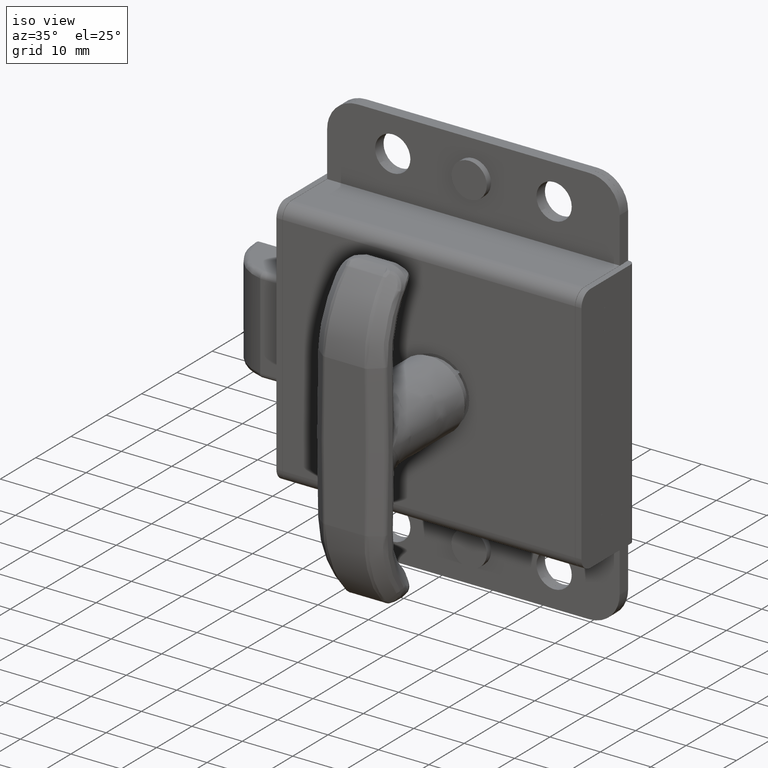
[diagram: clean part render]
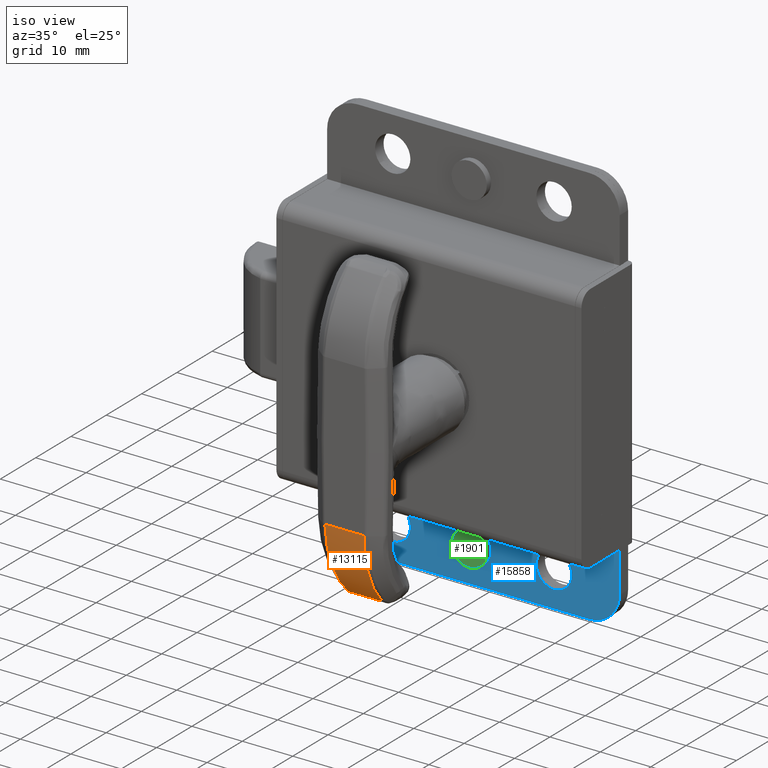
[diagram: same view with three faces highlighted in distinct colors, each labeled with its STEP entity id]
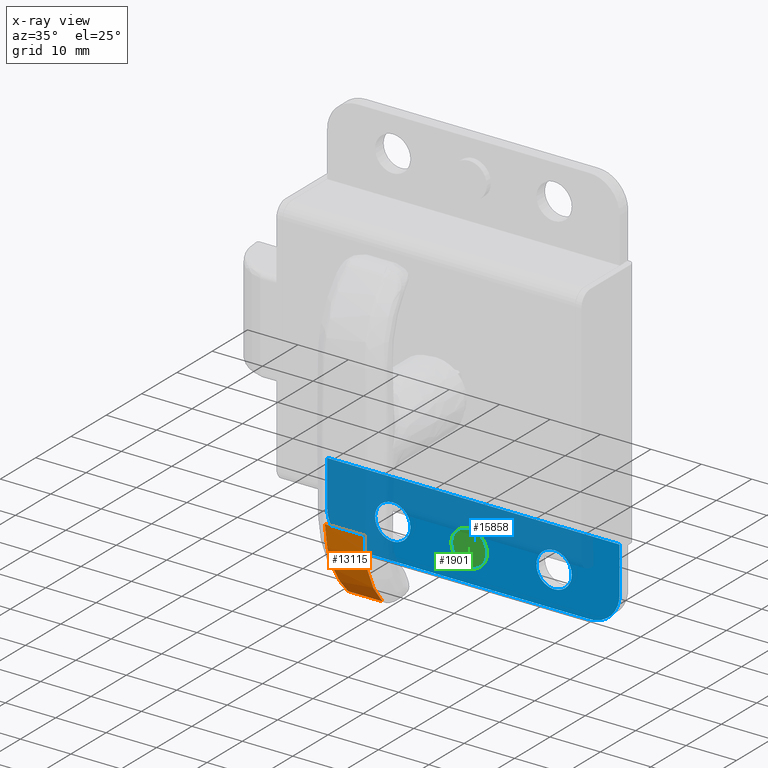
[diagram: x-ray of the same camera — body ghosted, the three highlighted faces saturated]
A machine part, iso view with three faces highlighted in distinct colors.
The next image is the same camera in x-ray (body ghosted, the three faces saturated) — at least one of them is partly hidden behind the body in this view.
Their STEP definitions:

[orange] entity #13115 — the highlighted face is a freeform B-spline surface patch.
#7572=CARTESIAN_POINT('',(34.866581857402700,-3.390833851640485,-29.117647058823550));
#7573=VERTEX_POINT('',#7572);
#7731=CARTESIAN_POINT('',(34.866581857402700,3.390846303012135,-29.117647058823550));
#7732=VERTEX_POINT('',#7731);
#8295=CARTESIAN_POINT('',(34.866581857402700,-3.390833851640485,-29.117647058823550));
#8296=CARTESIAN_POINT('',(34.866581857402700,3.390846303012135,-29.117647058823550));
#8297=QUASI_UNIFORM_CURVE('',1,(#8295,#8296),.UNSPECIFIED.,.F.,.U.);
#8298=EDGE_CURVE('',#7573,#7732,#8297,.T.);
#11952=CARTESIAN_POINT('',(40.700000000000003,-3.922784362413668,-15.0));
#11953=VERTEX_POINT('',#11952);
#11954=CARTESIAN_POINT('',(40.700000000000003,-3.922784362413668,-15.0));
#11955=CARTESIAN_POINT('',(40.699984684532879,-3.894117184423682,-16.020590056451422));
#11956=CARTESIAN_POINT('',(40.540175108375102,-3.831930946873028,-18.102464384662980));
#11957=CARTESIAN_POINT('',(39.879318813633560,-3.738250470200961,-20.891524496435899));
#11958=CARTESIAN_POINT('',(38.754569020394619,-3.630783454281930,-23.788048111032658));
#11959=CARTESIAN_POINT('',(37.176562423955048,-3.517359140310995,-26.522090437432428));
#11960=CARTESIAN_POINT('',(35.644487148158120,-3.430813154814004,-28.337173961863389));
#11961=CARTESIAN_POINT('',(34.866581857402700,-3.390833851640485,-29.117647058823550));
#11962=B_SPLINE_CURVE_WITH_KNOTS('',3,(#11954,#11955,#11956,#11957,#11958,#11959,#11960,#11961),.UNSPECIFIED.,.F.,.U.,(4,1,1,1,1,4),(0.000000013225765,3.062975348638464,6.248476765826531,8.576330709866040,12.374434148582891,15.682447340679831),.UNSPECIFIED.);
#11963=EDGE_CURVE('',#11953,#7573,#11962,.T.);
#12434=CARTESIAN_POINT('',(40.700000000000003,3.923046209698191,-15.0));
#12435=VERTEX_POINT('',#12434);
#12436=CARTESIAN_POINT('',(34.866581857402700,3.390846303012135,-29.117647058823550));
#12437=CARTESIAN_POINT('',(35.759828202062003,3.436799092020370,-28.221615474150639));
#12438=CARTESIAN_POINT('',(36.958262847100990,3.505580531705960,-26.765576290862519));
#12439=CARTESIAN_POINT('',(38.426871086419112,3.607334068280325,-24.359253588092720));
#12440=CARTESIAN_POINT('',(39.522402391581693,3.699619263927739,-21.980844066863721));
#12441=CARTESIAN_POINT('',(40.455604896134517,3.811905434337211,-18.755546524060449));
#12442=CARTESIAN_POINT('',(40.700088099535101,3.885220623561299,-16.347189874097911));
#12443=CARTESIAN_POINT('',(40.700000000000003,3.923046209698191,-15.0));
#12444=B_SPLINE_CURVE_WITH_KNOTS('',3,(#12436,#12437,#12438,#12439,#12440,#12441,#12442,#12443),.UNSPECIFIED.,.F.,.U.,(4,1,1,1,1,4),(0.000000013239648,3.798098070723198,5.635896250115776,8.453815982737567,11.639333666689669,15.682471205172099),.UNSPECIFIED.);
#12445=EDGE_CURVE('',#7732,#12435,#12444,.T.);
#12951=CARTESIAN_POINT('',(40.700000000000003,3.923046209698191,-15.0));
#12952=CARTESIAN_POINT('',(40.700000000000003,-3.922784362413668,-15.0));
#12953=QUASI_UNIFORM_CURVE('',1,(#12951,#12952),.UNSPECIFIED.,.F.,.U.);
#12954=EDGE_CURVE('',#12435,#11953,#12953,.T.);
#13095=CARTESIAN_POINT('',(40.699238461283407,4.119191974000987,-14.825469290032540));
#13096=CARTESIAN_POINT('',(40.699238461283407,-4.123833770824033,-14.825469290032540));
#13097=CARTESIAN_POINT('',(40.776191132410204,4.119191974000987,-23.643371998297592));
#13098=CARTESIAN_POINT('',(40.776191132410204,-4.123833770824033,-23.643371998297592));
#13099=CARTESIAN_POINT('',(34.317866777769282,4.119191974000987,-29.647651839900053));
#13100=CARTESIAN_POINT('',(34.317866777769282,-4.123833770824033,-29.647651839900053));
#13108=(BOUNDED_SURFACE()B_SPLINE_SURFACE(1,2,((#13095,#13097,#13099),(#13096,#13098,#13100)),.UNSPECIFIED.,.F.,.F.,.U.)B_SPLINE_SURFACE_WITH_KNOTS((2,2),(3,3),(0.0,8.243025744825021),(0.0,16.853723274235531),.UNSPECIFIED.)GEOMETRIC_REPRESENTATION_ITEM()RATIONAL_B_SPLINE_SURFACE(((1.0,0.914311860418089,0.998480782473395),(1.0,0.914311860418089,0.998480782473395)))REPRESENTATION_ITEM('')SURFACE());
#13109=ORIENTED_EDGE('',*,*,#11963,.T.);
#13110=ORIENTED_EDGE('',*,*,#8298,.T.);
#13111=ORIENTED_EDGE('',*,*,#12445,.T.);
#13112=ORIENTED_EDGE('',*,*,#12954,.T.);
#13113=EDGE_LOOP('',(#13109,#13110,#13111,#13112));
#13114=FACE_OUTER_BOUND('',#13113,.T.);
#13115=ADVANCED_FACE('',(#13114),#13108,.T.);

[blue] entity #15858 — the highlighted face is a freeform B-spline surface patch.
#13448=CARTESIAN_POINT('',(-3.416920234175149,-2.399999999999960,-34.756534873774939));
#13449=VERTEX_POINT('',#13448);
#13455=CARTESIAN_POINT('',(-1.499998785926152,-2.399999999999960,-35.600000000000001));
#13456=VERTEX_POINT('',#13455);
#13457=CARTESIAN_POINT('',(-3.416920234175149,-2.399999999999960,-34.756534873774939));
#13458=CARTESIAN_POINT('',(-3.219855669757540,-2.399999999999959,-34.971905792341893));
#13459=CARTESIAN_POINT('',(-2.842055765705816,-2.399999999999960,-35.265038733601052));
#13460=CARTESIAN_POINT('',(-2.173536192322477,-2.399999999999962,-35.538734691216348));
#13461=CARTESIAN_POINT('',(-1.746993959185649,-2.399999999999957,-35.600095130316213));
#13462=CARTESIAN_POINT('',(-1.499998785926152,-2.399999999999960,-35.600000000000001));
#13463=B_SPLINE_CURVE_WITH_KNOTS('',3,(#13457,#13458,#13459,#13460,#13461,#13462),.UNSPECIFIED.,.F.,.U.,(4,1,1,4),(0.000000034474533,0.875678358674883,1.414538481553656,2.155496908159915),.UNSPECIFIED.);
#13464=EDGE_CURVE('',#13449,#13456,#13463,.T.);
#13466=CARTESIAN_POINT('',(1.100001214073072,-2.399999999999960,-32.999997991167277));
#13467=VERTEX_POINT('',#13466);
#13468=CARTESIAN_POINT('',(-1.499998785926152,-2.399999999999960,-35.600000000000001));
#13469=CARTESIAN_POINT('',(-1.287293132867444,-2.399999999999958,-35.600028725438477));
#13470=CARTESIAN_POINT('',(-0.798024374786281,-2.399999999999966,-35.539723560499532));
#13471=CARTESIAN_POINT('',(-0.184229588232030,-2.399999999999957,-35.276662493307157));
#13472=CARTESIAN_POINT('',(0.304357308947055,-2.399999999999966,-34.895158869968661));
#13473=CARTESIAN_POINT('',(0.639431305791449,-2.399999999999958,-34.506757094296248));
#13474=CARTESIAN_POINT('',(0.881726096317039,-2.399999999999960,-34.079012914186421));
#13475=CARTESIAN_POINT('',(1.055370652094941,-2.399999999999973,-33.574297585938723));
#13476=CARTESIAN_POINT('',(1.100052276730717,-2.399999999999929,-33.212714013943149));
#13477=CARTESIAN_POINT('',(1.100001214073072,-2.399999999999960,-32.999997991167277));
#13478=B_SPLINE_CURVE_WITH_KNOTS('',3,(#13468,#13469,#13470,#13471,#13472,#13473,#13474,#13475,#13476,#13477),.UNSPECIFIED.,.F.,.U.,(4,1,1,1,1,1,1,4),(0.000000049362655,0.638148559401645,1.467754755126798,1.978275085900015,2.488787162450159,2.999315219038092,3.446025558408784,4.084174067509134),.UNSPECIFIED.);
#13479=EDGE_CURVE('',#13456,#13467,#13478,.T.);
#13481=CARTESIAN_POINT('',(-1.499998785926152,-2.399999999999960,-30.399999999999999));
#13482=VERTEX_POINT('',#13481);
#13483=CARTESIAN_POINT('',(1.100001214073072,-2.399999999999960,-32.999997991167277));
#13484=CARTESIAN_POINT('',(1.100142343178673,-2.399999999999963,-32.723457505864353));
#13485=CARTESIAN_POINT('',(1.014360302731858,-2.399999999999958,-32.191763934770833));
#13486=CARTESIAN_POINT('',(0.695361952268229,-2.399999999999963,-31.557929230442891));
#13487=CARTESIAN_POINT('',(0.304342029933809,-2.399999999999959,-31.104847042812700));
#13488=CARTESIAN_POINT('',(-0.184227299882296,-2.399999999999964,-30.723334019064570));
#13489=CARTESIAN_POINT('',(-0.798025880729342,-2.399999999999952,-30.460276165366331));
#13490=CARTESIAN_POINT('',(-1.287292783137545,-2.399999999999973,-30.399970893022410));
#13491=CARTESIAN_POINT('',(-1.499998785926152,-2.399999999999960,-30.399999999999999));
#13492=B_SPLINE_CURVE_WITH_KNOTS('',3,(#13483,#13484,#13485,#13486,#13487,#13488,#13489,#13490,#13491),.UNSPECIFIED.,.F.,.U.,(4,1,1,1,1,1,4),(0.000000052114298,0.829596368977025,1.595386072455264,2.105897864372087,2.616417911213779,3.446023646687444,4.084171803029951),.UNSPECIFIED.);
#13493=EDGE_CURVE('',#13467,#13482,#13492,.T.);
#13495=CARTESIAN_POINT('',(-3.363291000172590,-2.399999999999960,-31.186677217423661));
#13496=VERTEX_POINT('',#13495);
#13497=CARTESIAN_POINT('',(-1.499998785926152,-2.399999999999960,-30.399999999999999));
#13498=CARTESIAN_POINT('',(-1.759686707306527,-2.399999999999958,-30.399887577409270));
#13499=CARTESIAN_POINT('',(-2.170751542890674,-2.399999999999957,-30.462126072113531));
#13500=CARTESIAN_POINT('',(-2.814474150497446,-2.399999999999965,-30.724487106093822));
#13501=CARTESIAN_POINT('',(-3.167191042096416,-2.399999999999959,-30.984941690904641));
#13502=CARTESIAN_POINT('',(-3.363291000172590,-2.399999999999960,-31.186677217423661));
#13503=B_SPLINE_CURVE_WITH_KNOTS('',3,(#13497,#13498,#13499,#13500,#13501,#13502),.UNSPECIFIED.,.F.,.U.,(4,1,1,4),(0.000000028682990,0.779026053297691,1.233439493003217,2.077383332351485),.UNSPECIFIED.);
#13504=EDGE_CURVE('',#13482,#13496,#13503,.T.);
#13540=CARTESIAN_POINT('',(-4.099998785925376,-2.399999999999960,-33.000002008832702));
#13541=VERTEX_POINT('',#13540);
#13542=CARTESIAN_POINT('',(-3.363291000172590,-2.399999999999960,-31.186677217423661));
#13543=CARTESIAN_POINT('',(-3.523715797425609,-2.399999999999961,-31.351412107302998));
#13544=CARTESIAN_POINT('',(-3.762599835669079,-2.399999999999958,-31.673059134502019));
#13545=CARTESIAN_POINT('',(-4.030536263967387,-2.399999999999968,-32.289371746393023));
#13546=CARTESIAN_POINT('',(-4.100128699704898,-2.399999999999955,-32.728244023216298));
#13547=CARTESIAN_POINT('',(-4.099998785925376,-2.399999999999960,-33.000002008832702));
#13548=B_SPLINE_CURVE_WITH_KNOTS('',3,(#13542,#13543,#13544,#13545,#13546,#13547),.UNSPECIFIED.,.F.,.U.,(4,1,1,4),(0.000000014282088,0.689820832682457,1.191507894314409,2.006750850001553),.UNSPECIFIED.);
#13549=EDGE_CURVE('',#13496,#13541,#13548,.T.);
#13551=CARTESIAN_POINT('',(-4.099998785925376,-2.399999999999960,-33.000002008832702));
#13552=CARTESIAN_POINT('',(-4.100066309648689,-2.399999999999966,-33.220997079659348));
#13553=CARTESIAN_POINT('',(-4.056168627943325,-2.399999999999952,-33.562471689187603));
#13554=CARTESIAN_POINT('',(-3.850743084931842,-2.399999999999974,-34.173296150507483));
#13555=CARTESIAN_POINT('',(-3.620698054133786,-2.399999999999965,-34.534485363632363));
#13556=CARTESIAN_POINT('',(-3.416920234175149,-2.399999999999960,-34.756534873774939));
#13557=B_SPLINE_CURVE_WITH_KNOTS('',3,(#13551,#13552,#13553,#13554,#13555,#13556),.UNSPECIFIED.,.F.,.U.,(4,1,1,4),(0.000000021433308,0.662972812004960,1.024581104848874,1.928630163305347),.UNSPECIFIED.);
#13558=EDGE_CURVE('',#13541,#13449,#13557,.T.);
#14496=CARTESIAN_POINT('',(11.919530261611460,-2.399999999999960,-35.364566071365459));
#14497=VERTEX_POINT('',#14496);
#14503=CARTESIAN_POINT('',(14.500001214073921,-2.399999999999960,-36.500000000000007));
#14504=VERTEX_POINT('',#14503);
#14505=CARTESIAN_POINT('',(11.919530261611460,-2.399999999999960,-35.364566071365459));
#14506=CARTESIAN_POINT('',(12.164441716337830,-2.399999999999957,-35.632120268170468));
#14507=CARTESIAN_POINT('',(12.666740818759569,-2.399999999999970,-36.032596594050887));
#14508=CARTESIAN_POINT('',(13.563074690331019,-2.399999999999947,-36.413207711038957));
#14509=CARTESIAN_POINT('',(14.167514454261010,-2.399999999999970,-36.500121004566928));
#14510=CARTESIAN_POINT('',(14.500001214073921,-2.399999999999960,-36.500000000000007));
#14511=B_SPLINE_CURVE_WITH_KNOTS('',3,(#14505,#14506,#14507,#14508,#14509,#14510),.UNSPECIFIED.,.F.,.U.,(4,1,1,4),(0.000000032164861,1.088111893590678,1.904189423262297,2.901630277649041),.UNSPECIFIED.);
#14512=EDGE_CURVE('',#14497,#14504,#14511,.T.);
#14514=CARTESIAN_POINT('',(18.000001214073489,-2.399999999999960,-32.999998254870420));
#14515=VERTEX_POINT('',#14514);
#14516=CARTESIAN_POINT('',(14.500001214073921,-2.399999999999960,-36.500000000000007));
#14517=CARTESIAN_POINT('',(14.800669890643769,-2.399999999999962,-36.500091236438351));
#14518=CARTESIAN_POINT('',(15.287401427551311,-2.399999999999956,-36.436866260513412));
#14519=CARTESIAN_POINT('',(15.937928778138531,-2.399999999999964,-36.208574933133100));
#14520=CARTESIAN_POINT('',(16.542258463386521,-2.399999999999959,-35.876039379091047));
#14521=CARTESIAN_POINT('',(17.096788287302189,-2.399999999999978,-35.391742911500991));
#14522=CARTESIAN_POINT('',(17.492820564785280,-2.399999999999952,-34.843696177477099));
#14523=CARTESIAN_POINT('',(17.757242529438070,-2.399999999999961,-34.318376186343642));
#14524=CARTESIAN_POINT('',(17.947572698986569,-2.399999999999960,-33.730154089096807));
#14525=CARTESIAN_POINT('',(18.000052654999440,-2.399999999999958,-33.257710434535497));
#14526=CARTESIAN_POINT('',(18.000001214073489,-2.399999999999960,-32.999998254870420));
#14527=B_SPLINE_CURVE_WITH_KNOTS('',3,(#14516,#14517,#14518,#14519,#14520,#14521,#14522,#14523,#14524,#14525,#14526),.UNSPECIFIED.,.F.,.U.,(4,1,1,1,1,1,1,1,4),(0.000000101515034,0.901978698581494,1.460362116018985,2.061702274454318,2.963665000343418,3.650890574717719,4.080416664219243,4.724695051800258,5.497822623661568),.UNSPECIFIED.);
#14528=EDGE_CURVE('',#14504,#14515,#14527,.T.);
#14530=CARTESIAN_POINT('',(14.500001214073921,-2.399999999999960,-29.500000000000000));
#14531=VERTEX_POINT('',#14530);
#14532=CARTESIAN_POINT('',(18.000001214073489,-2.399999999999960,-32.999998254870420));
#14533=CARTESIAN_POINT('',(18.000012249923191,-2.399999999999962,-32.799562184581063));
#14534=CARTESIAN_POINT('',(17.961787356474879,-2.399999999999959,-32.355734884688736));
#14535=CARTESIAN_POINT('',(17.746045245562971,-2.399999999999960,-31.593926365398840));
#14536=CARTESIAN_POINT('',(17.316117224698619,-2.399999999999964,-30.856181556955171));
#14537=CARTESIAN_POINT('',(16.715034703965049,-2.399999999999960,-30.255301208112360));
#14538=CARTESIAN_POINT('',(16.048773545181540,-2.399999999999950,-29.827590219161511));
#14539=CARTESIAN_POINT('',(15.301755893973739,-2.400000000000000,-29.560320644266099));
#14540=CARTESIAN_POINT('',(14.757709250871820,-2.399999999999919,-29.499967455751889));
#14541=CARTESIAN_POINT('',(14.500001214073921,-2.399999999999960,-29.500000000000000));
#14542=B_SPLINE_CURVE_WITH_KNOTS('',3,(#14532,#14533,#14534,#14535,#14536,#14537,#14538,#14539,#14540,#14541),.UNSPECIFIED.,.F.,.U.,(4,1,1,1,1,1,1,4),(0.000000102118525,0.601312605873254,1.331503588238532,2.362368726341667,3.135454784082896,3.865654999032276,4.724693360310804,5.497820656481568),.UNSPECIFIED.);
#14543=EDGE_CURVE('',#14515,#14531,#14542,.T.);
#14545=CARTESIAN_POINT('',(11.991723062650189,-2.399999999999960,-30.558988393669271));
#14546=VERTEX_POINT('',#14545);
#14547=CARTESIAN_POINT('',(14.500001214073921,-2.399999999999960,-29.500000000000000));
#14548=CARTESIAN_POINT('',(14.164986628128970,-2.399999999999963,-29.499849403582989));
#14549=CARTESIAN_POINT('',(13.626186738537729,-2.399999999999955,-29.578015591321790));
#14550=CARTESIAN_POINT('',(12.755265068883960,-2.399999999999961,-29.920267210545081));
#14551=CARTESIAN_POINT('',(12.265847558405991,-2.399999999999959,-30.276971000331120));
#14552=CARTESIAN_POINT('',(11.991723062650189,-2.399999999999960,-30.558988393669271));
#14553=B_SPLINE_CURVE_WITH_KNOTS('',3,(#14547,#14548,#14549,#14550,#14551,#14552),.UNSPECIFIED.,.F.,.U.,(4,1,1,4),(0.000000030316651,1.004991793309355,1.616712548835174,2.796477657012359),.UNSPECIFIED.);
#14554=EDGE_CURVE('',#14531,#14546,#14553,.T.);
#14590=CARTESIAN_POINT('',(11.000001214074359,-2.399999999999960,-33.000001745129623));
#14591=VERTEX_POINT('',#14590);
#14592=CARTESIAN_POINT('',(11.991723062650189,-2.399999999999960,-30.558988393669271));
#14593=CARTESIAN_POINT('',(11.756136142256009,-2.399999999999963,-30.800906176268690));
#14594=CARTESIAN_POINT('',(11.364156326886180,-2.399999999999954,-31.342069516032740));
#14595=CARTESIAN_POINT('',(11.057814297882929,-2.399999999999954,-32.198029592867627));
#14596=CARTESIAN_POINT('',(10.999987224516010,-2.399999999999971,-32.760824663688659));
#14597=CARTESIAN_POINT('',(11.000001214074359,-2.399999999999960,-33.000001745129623));
#14598=B_SPLINE_CURVE_WITH_KNOTS('',3,(#14592,#14593,#14594,#14595,#14596,#14597),.UNSPECIFIED.,.F.,.U.,(4,1,1,4),(0.000000025528409,1.013006391223833,1.983800050194079,2.701345416625116),.UNSPECIFIED.);
#14599=EDGE_CURVE('',#14546,#14591,#14598,.T.);
#14601=CARTESIAN_POINT('',(11.000001214074359,-2.399999999999960,-33.000001745129623));
#14602=CARTESIAN_POINT('',(10.999982851103111,-2.399999999999961,-33.216349705179837));
#14603=CARTESIAN_POINT('',(11.042764381392169,-2.399999999999961,-33.676075090072374));
#14604=CARTESIAN_POINT('',(11.291240190925739,-2.399999999999955,-34.509979857296017));
#14605=CARTESIAN_POINT('',(11.645246096991469,-2.399999999999963,-35.065640965675883));
#14606=CARTESIAN_POINT('',(11.919530261611460,-2.399999999999960,-35.364566071365459));
#14607=B_SPLINE_CURVE_WITH_KNOTS('',3,(#14601,#14602,#14603,#14604,#14605,#14606),.UNSPECIFIED.,.F.,.U.,(4,1,1,4),(0.000000023648842,0.649047567040421,1.379219499361307,2.596190277937086),.UNSPECIFIED.);
#14608=EDGE_CURVE('',#14591,#14497,#14607,.T.);
#14705=CARTESIAN_POINT('',(-20.080469738388611,-2.399999999999960,-35.364566071365473));
#14706=VERTEX_POINT('',#14705);
#14712=CARTESIAN_POINT('',(-17.499998785926149,-2.399999999999960,-36.500000000000007));
#14713=VERTEX_POINT('',#14712);
#14714=CARTESIAN_POINT('',(-20.080469738388611,-2.399999999999960,-35.364566071365473));
#14715=CARTESIAN_POINT('',(-19.876315378749929,-2.399999999999965,-35.587450918170703));
#14716=CARTESIAN_POINT('',(-19.386525408666561,-2.399999999999951,-35.999544135388412));
#14717=CARTESIAN_POINT('',(-18.497386025927661,-2.399999999999976,-36.404561034798682));
#14718=CARTESIAN_POINT('',(-17.832487615960289,-2.399999999999953,-36.500129165639969));
#14719=CARTESIAN_POINT('',(-17.499998785926149,-2.399999999999960,-36.500000000000007));
#14720=B_SPLINE_CURVE_WITH_KNOTS('',3,(#14714,#14715,#14716,#14717,#14718,#14719),.UNSPECIFIED.,.F.,.U.,(4,1,1,4),(0.000000032168882,0.906764413411266,1.904189423262853,2.901630277649018),.UNSPECIFIED.);
#14721=EDGE_CURVE('',#14706,#14713,#14720,.T.);
#14723=CARTESIAN_POINT('',(-13.999998785926589,-2.399999999999960,-32.999998254870427));
#14724=VERTEX_POINT('',#14723);
#14725=CARTESIAN_POINT('',(-17.499998785926149,-2.399999999999960,-36.500000000000007));
#14726=CARTESIAN_POINT('',(-17.070409153121101,-2.399999999999962,-36.500402455828272));
#14727=CARTESIAN_POINT('',(-16.483695694520780,-2.399999999999960,-36.390558203989819));
#14728=CARTESIAN_POINT('',(-15.716135949051830,-2.399999999999960,-36.033188809286742));
#14729=CARTESIAN_POINT('',(-15.209730608820029,-2.399999999999955,-35.676563163582891));
#14730=CARTESIAN_POINT('',(-14.704371260655670,-2.399999999999984,-35.145770620231310));
#14731=CARTESIAN_POINT('',(-14.383628493866070,-2.399999999999925,-34.632325379551567));
#14732=CARTESIAN_POINT('',(-14.086272640544291,-2.399999999999992,-33.901846291489463));
#14733=CARTESIAN_POINT('',(-13.999738336556771,-2.399999999999945,-33.386605073958677));
#14734=CARTESIAN_POINT('',(-13.999998785926589,-2.399999999999960,-32.999998254870427));
#14735=B_SPLINE_CURVE_WITH_KNOTS('',3,(#14725,#14726,#14727,#14728,#14729,#14730,#14731,#14732,#14733,#14734),.UNSPECIFIED.,.F.,.U.,(4,1,1,1,1,1,1,4),(0.000000101528363,1.288550829675297,1.761032567257538,2.534160041264670,3.135455907721423,3.951558725674891,4.338132888087488,5.497822623661560),.UNSPECIFIED.);
#14736=EDGE_CURVE('',#14713,#14724,#14735,.T.);
#14738=CARTESIAN_POINT('',(-17.499998785926149,-2.399999999999960,-29.500000000000000));
#14739=VERTEX_POINT('',#14738);
#14740=CARTESIAN_POINT('',(-13.999998785926589,-2.399999999999960,-32.999998254870427));
#14741=CARTESIAN_POINT('',(-13.999868705877930,-2.399999999999956,-32.670693139170247));
#14742=CARTESIAN_POINT('',(-14.081442686468650,-2.399999999999969,-32.098080469413503));
#14743=CARTESIAN_POINT('',(-14.379951670943530,-2.399999999999953,-31.364759522177319));
#14744=CARTESIAN_POINT('',(-14.775674700929150,-2.399999999999966,-30.764580140109508));
#14745=CARTESIAN_POINT('',(-15.284945376091130,-2.399999999999960,-30.255291492751638));
#14746=CARTESIAN_POINT('',(-15.951224888179359,-2.399999999999972,-29.827588352766259));
#14747=CARTESIAN_POINT('',(-16.698244768679491,-2.399999999999911,-29.560320803768029));
#14748=CARTESIAN_POINT('',(-17.242290789526908,-2.400000000000029,-29.499968255036482));
#14749=CARTESIAN_POINT('',(-17.499998785926149,-2.399999999999960,-29.500000000000000));
#14750=B_SPLINE_CURVE_WITH_KNOTS('',3,(#14740,#14741,#14742,#14743,#14744,#14745,#14746,#14747,#14748,#14749),.UNSPECIFIED.,.F.,.U.,(4,1,1,1,1,1,1,4),(0.000000102150294,0.987880312577950,1.718072327802439,2.362368726358767,3.135454784095585,3.865654999040907,4.724693360314614,5.497820656481351),.UNSPECIFIED.);
#14751=EDGE_CURVE('',#14724,#14739,#14750,.T.);
#14753=CARTESIAN_POINT('',(-20.008276937349880,-2.399999999999960,-30.558988393669271));
#14754=VERTEX_POINT('',#14753);
#14755=CARTESIAN_POINT('',(-17.499998785926149,-2.399999999999960,-29.500000000000000));
#14756=CARTESIAN_POINT('',(-17.791302932113108,-2.399999999999965,-29.499925560631489));
#14757=CARTESIAN_POINT('',(-18.388433331143869,-2.399999999999955,-29.574960880873789));
#14758=CARTESIAN_POINT('',(-19.261301373394179,-2.399999999999962,-29.924314988079239));
#14759=CARTESIAN_POINT('',(-19.774720383614088,-2.399999999999951,-30.318820712175391));
#14760=CARTESIAN_POINT('',(-20.008276937349880,-2.399999999999960,-30.558988393669271));
#14761=B_SPLINE_CURVE_WITH_KNOTS('',3,(#14755,#14756,#14757,#14758,#14759,#14760),.UNSPECIFIED.,.F.,.U.,(4,1,1,4),(0.000000030317703,0.873901309405601,1.791485894064032,2.796477657012340),.UNSPECIFIED.);
#14762=EDGE_CURVE('',#14739,#14754,#14761,.T.);
#14798=CARTESIAN_POINT('',(-20.999998785925719,-2.399999999999960,-33.000001745129623));
#14799=VERTEX_POINT('',#14798);
#14800=CARTESIAN_POINT('',(-20.008276937349880,-2.399999999999960,-30.558988393669271));
#14801=CARTESIAN_POINT('',(-20.204569440926161,-2.399999999999968,-30.760608251983530));
#14802=CARTESIAN_POINT('',(-20.565335836803399,-2.399999999999948,-31.234055967435118));
#14803=CARTESIAN_POINT('',(-20.917383053065429,-2.399999999999973,-32.071444675309742));
#14804=CARTESIAN_POINT('',(-21.000078706586041,-2.399999999999945,-32.690468943007588));
#14805=CARTESIAN_POINT('',(-20.999998785925719,-2.399999999999960,-33.000001745129623));
#14806=B_SPLINE_CURVE_WITH_KNOTS('',3,(#14800,#14801,#14802,#14803,#14804,#14805),.UNSPECIFIED.,.F.,.U.,(4,1,1,4),(0.000000025531766,0.844175154298824,1.772756542335146,2.701345416625139),.UNSPECIFIED.);
#14807=EDGE_CURVE('',#14754,#14799,#14806,.T.);
#14809=CARTESIAN_POINT('',(-20.999998785925719,-2.399999999999960,-33.000001745129623));
#14810=CARTESIAN_POINT('',(-21.000126681338369,-2.399999999999960,-33.338062962689747));
#14811=CARTESIAN_POINT('',(-20.924965579246329,-2.399999999999960,-33.851797180098970));
#14812=CARTESIAN_POINT('',(-20.615077776929230,-2.399999999999961,-34.662471264207532));
#14813=CARTESIAN_POINT('',(-20.318130308489980,-2.399999999999958,-35.105455341856647));
#14814=CARTESIAN_POINT('',(-20.080469738388611,-2.399999999999960,-35.364566071365473));
#14815=B_SPLINE_CURVE_WITH_KNOTS('',3,(#14809,#14810,#14811,#14812,#14813,#14814),.UNSPECIFIED.,.F.,.U.,(4,1,1,4),(0.000000023653695,1.014138912834446,1.541477907387931,2.596190277937093),.UNSPECIFIED.);
#14816=EDGE_CURVE('',#14799,#14706,#14815,.T.);
#14971=CARTESIAN_POINT('',(21.500001214073801,-2.400000000000000,-40.0));
#14972=VERTEX_POINT('',#14971);
#14973=CARTESIAN_POINT('',(27.500001214073851,-2.400000000000000,-34.0));
#14974=VERTEX_POINT('',#14973);
#14975=CARTESIAN_POINT('',(21.500001214073801,-2.400000000000000,-40.0));
#14976=CARTESIAN_POINT('',(21.892699900613859,-2.400000000000002,-40.000049126283500));
#14977=CARTESIAN_POINT('',(22.604450573252521,-2.400000000000001,-39.929869417514837));
#14978=CARTESIAN_POINT('',(23.504637334066711,-2.399999999999994,-39.674787957641151));
#14979=CARTESIAN_POINT('',(24.293301607660808,-2.400000000000002,-39.330966345694733));
#14980=CARTESIAN_POINT('',(24.966613217114070,-2.400000000000000,-38.921766127120648));
#14981=CARTESIAN_POINT('',(25.707933154854750,-2.399999999999996,-38.313376871825270));
#14982=CARTESIAN_POINT('',(26.475889583785591,-2.400000000000006,-37.445128313803110));
#14983=CARTESIAN_POINT('',(27.077636030753791,-2.399999999999992,-36.335680589811183));
#14984=CARTESIAN_POINT('',(27.427437429170290,-2.399999999999986,-35.128980643686639));
#14985=CARTESIAN_POINT('',(27.500054754811579,-2.399999999999995,-34.392697613572473));
#14986=CARTESIAN_POINT('',(27.500001214073851,-2.400000000000000,-34.0));
#14987=B_SPLINE_CURVE_WITH_KNOTS('',3,(#14975,#14976,#14977,#14978,#14979,#14980,#14981,#14982,#14983,#14984,#14985,#14986),.UNSPECIFIED.,.F.,.U.,(4,1,1,1,1,1,1,1,1,4),(0.000000081957786,1.178095658963921,2.135314170330475,2.798001019324087,3.755219258056831,4.491554470734565,5.669622206624959,7.215891097350843,8.246750375333516,9.424837097253477),.UNSPECIFIED.);
#14988=EDGE_CURVE('',#14972,#14974,#14987,.T.);
#15034=CARTESIAN_POINT('',(-30.499998785926049,-2.400000000000000,-34.0));
#15035=VERTEX_POINT('',#15034);
#15036=CARTESIAN_POINT('',(-24.499998785926000,-2.400000000000000,-40.0));
#15037=VERTEX_POINT('',#15036);
#15038=CARTESIAN_POINT('',(-30.499998785926049,-2.400000000000000,-34.0));
#15039=CARTESIAN_POINT('',(-30.500211800133801,-2.399999999999998,-34.564531047156997));
#15040=CARTESIAN_POINT('',(-30.381335606288580,-2.400000000000006,-35.398882064483963));
#15041=CARTESIAN_POINT('',(-29.976644585540871,-2.399999999999997,-36.508174216018169));
#15042=CARTESIAN_POINT('',(-29.430354738985130,-2.399999999999989,-37.501005776538662));
#15043=CARTESIAN_POINT('',(-28.616413934188561,-2.400000000000036,-38.432979489232999));
#15044=CARTESIAN_POINT('',(-27.542435163739359,-2.399999999999954,-39.219213011354228));
#15045=CARTESIAN_POINT('',(-26.217867108404938,-2.400000000000044,-39.826010727468898));
#15046=CARTESIAN_POINT('',(-25.138181430938619,-2.399999999999970,-40.000368792740261));
#15047=CARTESIAN_POINT('',(-24.499998785926000,-2.400000000000000,-40.0));
#15048=B_SPLINE_CURVE_WITH_KNOTS('',3,(#15038,#15039,#15040,#15041,#15042,#15043,#15044,#15045,#15046,#15047),.UNSPECIFIED.,.F.,.U.,(4,1,1,1,1,1,1,4),(0.000000081955399,1.693514969115959,2.503473632750258,3.534332933540788,5.080565303271548,6.185035244223649,7.510418290804957,9.424837097253505),.UNSPECIFIED.);
#15049=EDGE_CURVE('',#15035,#15037,#15048,.T.);
#15095=CARTESIAN_POINT('',(-30.499998785926000,-2.400000000000000,-25.0));
#15096=VERTEX_POINT('',#15095);
#15097=CARTESIAN_POINT('',(-30.499998785926000,-2.400000000000000,-25.0));
#15098=CARTESIAN_POINT('',(-30.499998785926049,-2.400000000000000,-34.0));
#15099=QUASI_UNIFORM_CURVE('',1,(#15097,#15098),.UNSPECIFIED.,.F.,.U.);
#15100=EDGE_CURVE('',#15096,#15035,#15099,.T.);
#15245=CARTESIAN_POINT('',(27.500001214073801,-2.400000000000000,-25.0));
#15246=VERTEX_POINT('',#15245);
#15247=CARTESIAN_POINT('',(27.500001214073801,-2.400000000000000,-25.0));
#15248=CARTESIAN_POINT('',(27.500001214073851,-2.400000000000000,-34.0));
#15249=QUASI_UNIFORM_CURVE('',1,(#15247,#15248),.UNSPECIFIED.,.F.,.U.);
#15250=EDGE_CURVE('',#15246,#14974,#15249,.T.);
#15562=CARTESIAN_POINT('',(21.500001214073801,-2.400000000000000,-40.0));
#15563=CARTESIAN_POINT('',(-24.499998785926000,-2.400000000000000,-40.0));
#15564=QUASI_UNIFORM_CURVE('',1,(#15562,#15563),.UNSPECIFIED.,.F.,.U.);
#15565=EDGE_CURVE('',#14972,#15037,#15564,.T.);
#15583=CARTESIAN_POINT('',(27.500001214073801,-2.400000000000000,-25.0));
#15584=CARTESIAN_POINT('',(-30.499998785926000,-2.400000000000000,-25.0));
#15585=QUASI_UNIFORM_CURVE('',1,(#15583,#15584),.UNSPECIFIED.,.F.,.U.);
#15586=EDGE_CURVE('',#15246,#15096,#15585,.T.);
#15821=CARTESIAN_POINT('',(-33.397098129048302,-2.400000000000000,-40.749249970927103));
#15822=CARTESIAN_POINT('',(-33.397098129048302,-2.400000000000000,-24.250749626741559));
#15823=CARTESIAN_POINT('',(30.397102631437729,-2.400000000000000,-40.749249970927103));
#15824=CARTESIAN_POINT('',(30.397102631437729,-2.400000000000000,-24.250749626741559));
#15825=B_SPLINE_SURFACE_WITH_KNOTS('',1,1,((#15821,#15823),(#15822,#15824)),.UNSPECIFIED.,.F.,.F.,.U.,(2,2),(2,2),(0.0,16.498500344185540),(0.0,63.794200760486007),.UNSPECIFIED.);
#15826=ORIENTED_EDGE('',*,*,#15100,.T.);
#15827=ORIENTED_EDGE('',*,*,#15049,.T.);
#15828=ORIENTED_EDGE('',*,*,#15565,.F.);
#15829=ORIENTED_EDGE('',*,*,#14988,.T.);
#15830=ORIENTED_EDGE('',*,*,#15250,.F.);
#15831=ORIENTED_EDGE('',*,*,#15586,.T.);
#15832=EDGE_LOOP('',(#15826,#15827,#15828,#15829,#15830,#15831));
#15833=FACE_OUTER_BOUND('',#15832,.T.);
#15834=ORIENTED_EDGE('',*,*,#14528,.F.);
#15835=ORIENTED_EDGE('',*,*,#14512,.F.);
#15836=ORIENTED_EDGE('',*,*,#14608,.F.);
#15837=ORIENTED_EDGE('',*,*,#14599,.F.);
#15838=ORIENTED_EDGE('',*,*,#14554,.F.);
#15839=ORIENTED_EDGE('',*,*,#14543,.F.);
#15840=EDGE_LOOP('',(#15834,#15835,#15836,#15837,#15838,#15839));
#15841=FACE_BOUND('',#15840,.T.);
#15842=ORIENTED_EDGE('',*,*,#14736,.F.);
#15843=ORIENTED_EDGE('',*,*,#14721,.F.);
#15844=ORIENTED_EDGE('',*,*,#14816,.F.);
#15845=ORIENTED_EDGE('',*,*,#14807,.F.);
#15846=ORIENTED_EDGE('',*,*,#14762,.F.);
#15847=ORIENTED_EDGE('',*,*,#14751,.F.);
#15848=EDGE_LOOP('',(#15842,#15843,#15844,#15845,#15846,#15847));
#15849=FACE_BOUND('',#15848,.T.);
#15850=ORIENTED_EDGE('',*,*,#13479,.F.);
#15851=ORIENTED_EDGE('',*,*,#13464,.F.);
#15852=ORIENTED_EDGE('',*,*,#13558,.F.);
#15853=ORIENTED_EDGE('',*,*,#13549,.F.);
#15854=ORIENTED_EDGE('',*,*,#13504,.F.);
#15855=ORIENTED_EDGE('',*,*,#13493,.F.);
#15856=EDGE_LOOP('',(#15850,#15851,#15852,#15853,#15854,#15855));
#15857=FACE_BOUND('',#15856,.T.);
#15858=ADVANCED_FACE('',(#15833,#15841,#15849,#15857),#15825,.F.);

[green] entity #1901 — the highlighted face is a freeform B-spline surface patch.
#1290=CARTESIAN_POINT('',(-4.172443852561049,-3.600000000026470,30.739902573470388));
#1291=VERTEX_POINT('',#1290);
#1292=CARTESIAN_POINT('',(-1.499998785926152,-3.600000000000050,29.500000000000000));
#1293=VERTEX_POINT('',#1292);
#1294=CARTESIAN_POINT('',(-4.172443852561049,-3.600000000026470,30.739902573470388));
#1295=CARTESIAN_POINT('',(-3.988414855063168,-3.600000000024648,30.522172211317720));
#1296=CARTESIAN_POINT('',(-3.648693651698868,-3.600000000021299,30.208017149344741));
#1297=CARTESIAN_POINT('',(-3.066416419528933,-3.600000000015529,29.851190130368309));
#1298=CARTESIAN_POINT('',(-2.386841412651970,-3.600000000008818,29.579619356549440));
#1299=CARTESIAN_POINT('',(-1.832601772210160,-3.600000000003353,29.499876487379119));
#1300=CARTESIAN_POINT('',(-1.499998785926152,-3.600000000000050,29.500000000000000));
#1301=B_SPLINE_CURVE_WITH_KNOTS('',3,(#1294,#1295,#1296,#1297,#1298,#1299,#1300),.UNSPECIFIED.,.F.,.U.,(4,1,1,1,4),(0.000000035719888,0.855234592802857,1.377877101528712,2.043052812809425,3.040829194677727),.UNSPECIFIED.);
#1302=EDGE_CURVE('',#1291,#1293,#1301,.T.);
#1365=CARTESIAN_POINT('',(-3.909239535148843,-3.599999999973896,35.538809950054031));
#1366=VERTEX_POINT('',#1365);
#1372=CARTESIAN_POINT('',(-1.499998785926152,-3.600000000000050,36.500000000000007));
#1373=VERTEX_POINT('',#1372);
#1374=CARTESIAN_POINT('',(-1.499998785926152,-3.600000000000050,36.500000000000007));
#1375=CARTESIAN_POINT('',(-1.915239537086483,-3.599999999995543,36.500306850407163));
#1376=CARTESIAN_POINT('',(-2.607013425680445,-3.599999999988032,36.375380615385723));
#1377=CARTESIAN_POINT('',(-3.400421595278941,-3.599999999979422,35.967702634013342));
#1378=CARTESIAN_POINT('',(-3.768696558934331,-3.599999999975423,35.672185907500882));
#1379=CARTESIAN_POINT('',(-3.909239535148843,-3.599999999973896,35.538809950054031));
#1380=B_SPLINE_CURVE_WITH_KNOTS('',3,(#1374,#1375,#1376,#1377,#1378,#1379),.UNSPECIFIED.,.F.,.U.,(4,1,1,4),(0.000000026549215,1.245606746057994,2.076000643045665,2.657279248141868),.UNSPECIFIED.);
#1381=EDGE_CURVE('',#1373,#1366,#1380,.T.);
#1383=CARTESIAN_POINT('',(2.000001214073413,-3.600000000000050,33.000001745129623));
#1384=VERTEX_POINT('',#1383);
#1385=CARTESIAN_POINT('',(2.000001214073413,-3.600000000000050,33.000001745129623));
#1386=CARTESIAN_POINT('',(2.000011685545229,-3.600000000000047,33.200437284981291));
#1387=CARTESIAN_POINT('',(1.961799240830262,-3.600000000000051,33.644272154418800));
#1388=CARTESIAN_POINT('',(1.781278031806301,-3.600000000000050,34.281372942293579));
#1389=CARTESIAN_POINT('',(1.467195775661619,-3.600000000000049,34.895916778113268));
#1390=CARTESIAN_POINT('',(1.051200092858409,-3.600000000000055,35.428959541591460));
#1391=CARTESIAN_POINT('',(0.495653082665250,-3.600000000000040,35.908215399896243));
#1392=CARTESIAN_POINT('',(-0.087193007004812,-3.600000000000058,36.224350902096504));
#1393=CARTESIAN_POINT('',(-0.769861449666365,-3.600000000000053,36.445218424005880));
#1394=CARTESIAN_POINT('',(-1.213652152810569,-3.600000000000052,36.500066695595038));
#1395=CARTESIAN_POINT('',(-1.499998785926152,-3.600000000000050,36.500000000000007));
#1396=B_SPLINE_CURVE_WITH_KNOTS('',3,(#1385,#1386,#1387,#1388,#1389,#1390,#1391,#1392,#1393,#1394,#1395),.UNSPECIFIED.,.F.,.U.,(4,1,1,1,1,1,1,1,4),(0.000000102116610,0.601312605872335,1.331503588237522,1.975797686965485,2.663029162121855,3.350222836626350,4.166319773393531,4.638797374200891,5.497820656481446),.UNSPECIFIED.);
#1397=EDGE_CURVE('',#1384,#1373,#1396,.T.);
#1399=CARTESIAN_POINT('',(-1.499998785926152,-3.600000000000050,29.500000000000000));
#1400=CARTESIAN_POINT('',(-1.242291707391503,-3.600000000000053,29.499956447609851));
#1401=CARTESIAN_POINT('',(-0.798482479430392,-3.600000000000046,29.549249218181000));
#1402=CARTESIAN_POINT('',(-0.167424220403291,-3.600000000000057,29.744916695881798));
#1403=CARTESIAN_POINT('',(0.408732118709816,-3.600000000000049,30.039343915827072));
#1404=CARTESIAN_POINT('',(0.883051477247874,-3.600000000000049,30.414239606689598));
#1405=CARTESIAN_POINT('',(1.326186435241346,-3.600000000000053,30.903134711575639));
#1406=CARTESIAN_POINT('',(1.654557472930345,-3.600000000000049,31.428806018609009));
#1407=CARTESIAN_POINT('',(1.929931889246627,-3.600000000000052,32.169662151910160));
#1408=CARTESIAN_POINT('',(2.000106680404366,-3.600000000000049,32.685016721601322));
#1409=CARTESIAN_POINT('',(2.000001214073413,-3.600000000000050,33.000001745129623));
#1410=B_SPLINE_CURVE_WITH_KNOTS('',3,(#1399,#1400,#1401,#1402,#1403,#1404,#1405,#1406,#1407,#1408,#1409),.UNSPECIFIED.,.F.,.U.,(4,1,1,1,1,1,1,1,4),(0.000000101515187,0.773114541064422,1.331504064134136,1.975798393269455,2.705995962218129,3.135455907717160,3.951558725673022,4.552896840431902,5.497822623661579),.UNSPECIFIED.);
#1411=EDGE_CURVE('',#1293,#1384,#1410,.T.);
#1430=CARTESIAN_POINT('',(-4.999998785925717,-3.600000000000050,32.999998254870420));
#1431=VERTEX_POINT('',#1430);
#1432=CARTESIAN_POINT('',(-4.999998785925717,-3.600000000000050,32.999998254870420));
#1433=CARTESIAN_POINT('',(-5.000267362738450,-3.600000000004684,32.603254389139238));
#1434=CARTESIAN_POINT('',(-4.859161479225923,-3.600000000014266,31.784492655912540));
#1435=CARTESIAN_POINT('',(-4.445441776693085,-3.600000000022700,31.062142178374319));
#1436=CARTESIAN_POINT('',(-4.172443852561049,-3.600000000026470,30.739902573470388));
#1437=B_SPLINE_CURVE_WITH_KNOTS('',3,(#1432,#1433,#1434,#1435,#1436),.UNSPECIFIED.,.F.,.U.,(4,1,4),(0.000000020258616,1.190120836985736,2.456992204964788),.UNSPECIFIED.);
#1438=EDGE_CURVE('',#1431,#1291,#1437,.T.);
#1440=CARTESIAN_POINT('',(-3.909239535148843,-3.599999999973896,35.538809950054031));
#1441=CARTESIAN_POINT('',(-4.070222315521973,-3.599999999975471,35.386064677797911));
#1442=CARTESIAN_POINT('',(-4.392298631536858,-3.599999999979275,35.016224852100791));
#1443=CARTESIAN_POINT('',(-4.754008590952102,-3.599999999985988,34.365433443597233));
#1444=CARTESIAN_POINT('',(-4.959188410430969,-3.599999999993183,33.665751641484448));
#1445=CARTESIAN_POINT('',(-5.000013705755752,-3.599999999997932,33.207118943831929));
#1446=CARTESIAN_POINT('',(-4.999998785925717,-3.600000000000050,32.999998254870420));
#1447=B_SPLINE_CURVE_WITH_KNOTS('',3,(#1440,#1441,#1442,#1443,#1444,#1445,#1446),.UNSPECIFIED.,.F.,.U.,(4,1,1,1,4),(0.000000032781961,0.665751878451222,1.464637220251419,2.219176924511674,2.840543909831932),.UNSPECIFIED.);
#1448=EDGE_CURVE('',#1366,#1431,#1447,.T.);
#1888=CARTESIAN_POINT('',(-5.349648575225342,-3.600000000000000,29.150350013567358));
#1889=CARTESIAN_POINT('',(2.349651378882300,-3.600000000000000,29.150350013567358));
#1890=CARTESIAN_POINT('',(-5.349648575225342,-3.600000000000000,36.849650174187282));
#1891=CARTESIAN_POINT('',(2.349651378882300,-3.600000000000000,36.849650174187282));
#1892=B_SPLINE_SURFACE_WITH_KNOTS('',1,1,((#1888,#1890),(#1889,#1891)),.UNSPECIFIED.,.F.,.F.,.U.,(2,2),(2,2),(0.0,7.699299954107643),(0.0,7.699300160619920),.UNSPECIFIED.);
#1893=ORIENTED_EDGE('',*,*,#1411,.T.);
#1894=ORIENTED_EDGE('',*,*,#1397,.T.);
#1895=ORIENTED_EDGE('',*,*,#1381,.T.);
#1896=ORIENTED_EDGE('',*,*,#1448,.T.);
#1897=ORIENTED_EDGE('',*,*,#1438,.T.);
#1898=ORIENTED_EDGE('',*,*,#1302,.T.);
#1899=EDGE_LOOP('',(#1893,#1894,#1895,#1896,#1897,#1898));
#1900=FACE_OUTER_BOUND('',#1899,.T.);
#1901=ADVANCED_FACE('',(#1900),#1892,.T.);